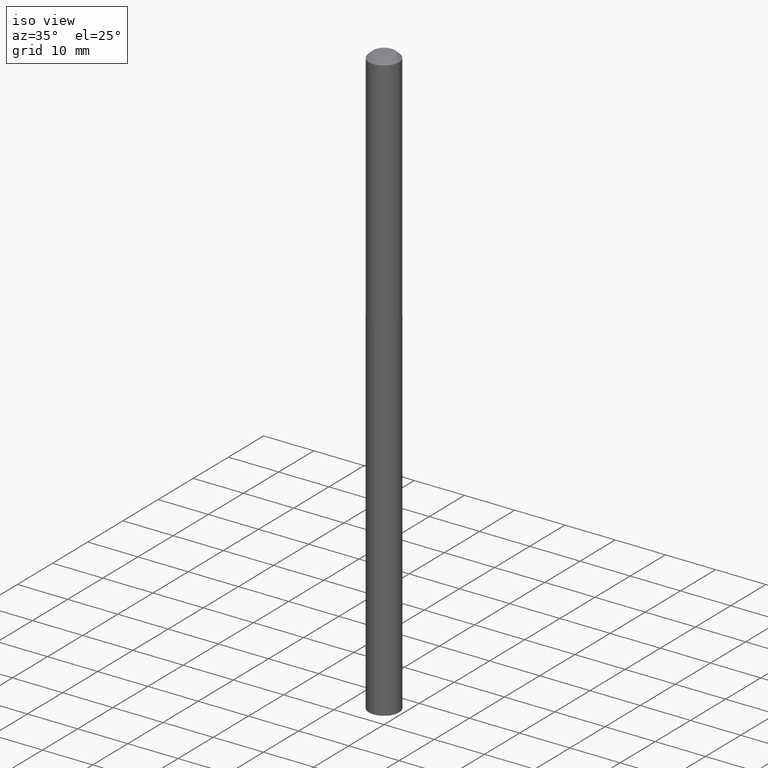
[diagram: clean part render]
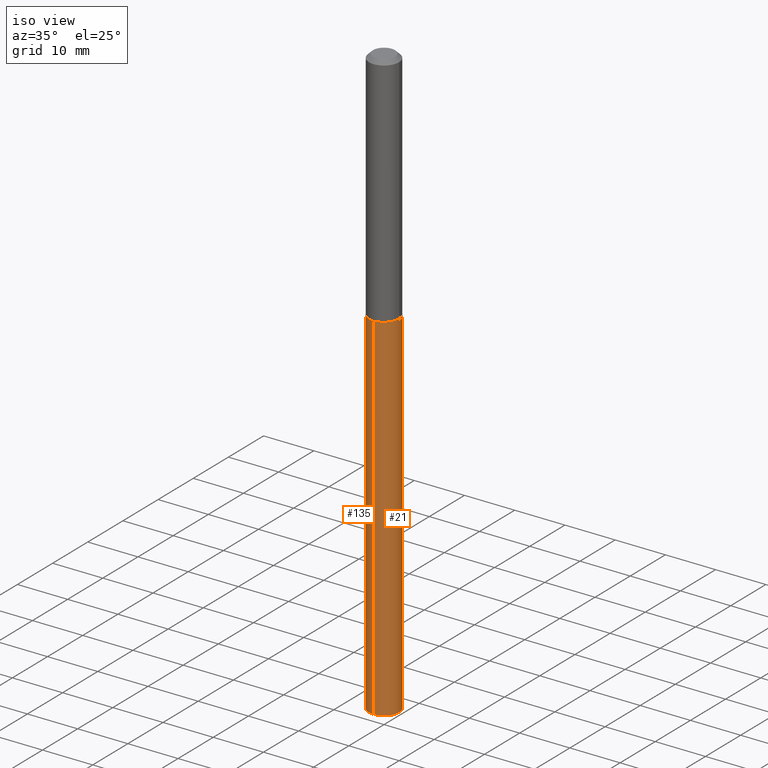
[diagram: same view with one multi-face feature highlighted, each face labeled with its STEP entity id]
A machine part, iso view. The highlighted faces form ONE feature: a constant-radius fillet chain: 2 tangent blend faces with common blend radius 2.9997 mm. The faces share edges in the B-rep.
Their STEP definitions:
[1] entity #135 (Cylinder):
#12 = CIRCLE ( 'NONE', #40, 0.1181000000000000105 ) ;
#20 = EDGE_CURVE ( 'NONE', #374, #281, #290, .T. ) ;
#22 = ORIENTED_EDGE ( 'NONE', *, *, #79, .T. ) ;
#40 = AXIS2_PLACEMENT_3D ( 'NONE', #261, #318, #55 ) ;
#44 = VERTEX_POINT ( 'NONE', #84 ) ;
#55 = DIRECTION ( 'NONE',  ( -6.982962677686265922E-15, -1.000000000000000000, 4.626330217890369336E-15 ) ) ;
#57 = DIRECTION ( 'NONE',  ( -2.442646099134245474E-29, 3.495523615998529672E-15, 1.000000000000000000 ) ) ;
#74 = VERTEX_POINT ( 'NONE', #231 ) ;
#79 = EDGE_CURVE ( 'NONE', #374, #44, #12, .T. ) ;
#84 = CARTESIAN_POINT ( 'NONE',  ( -8.246878922346346666E-16, -0.1181000000000161781, -4.638479172829875097 ) ) ;
#118 = AXIS2_PLACEMENT_3D ( 'NONE', #246, #57, #303 ) ;
#124 = DIRECTION ( 'NONE',  ( -6.982962677686265922E-15, -1.000000000000000000, 4.626330217890369336E-15 ) ) ;
#135 = ADVANCED_FACE ( 'NONE', ( #377 ), #230, .T. ) ;
#136 = CIRCLE ( 'NONE', #260, 0.1180999999999999966 ) ;
#159 = ORIENTED_EDGE ( 'NONE', *, *, #20, .F. ) ;
#209 = DIRECTION ( 'NONE',  ( -2.442646099134245474E-29, 3.495523615998529672E-15, 1.000000000000000000 ) ) ;
#212 = CARTESIAN_POINT ( 'NONE',  ( 8.391509709327920889E-16, 0.1180999999999935435, -1.850299999999999612 ) ) ;
#224 = EDGE_LOOP ( 'NONE', ( #159, #22, #251, #262 ) ) ;
#225 = CARTESIAN_POINT ( 'NONE',  ( 8.391509709327234580E-16, 0.1180999999999935435, -1.850299999999999612 ) ) ;
#230 = CYLINDRICAL_SURFACE ( 'NONE', #118, 0.1180999999999999966 ) ;
#231 = CARTESIAN_POINT ( 'NONE',  ( -8.246878922347027059E-16, -0.1181000000000064498, -1.850299999999998501 ) ) ;
#237 = EDGE_CURVE ( 'NONE', #281, #74, #136, .T. ) ;
#238 = CARTESIAN_POINT ( 'NONE',  ( 8.391509709327914972E-16, 0.1180999999999838013, -4.638479172829875985 ) ) ;
#246 = CARTESIAN_POINT ( 'NONE',  ( 4.524850932084356367E-29, -6.460287921261469331E-15, -1.850299999999999168 ) ) ;
#251 = ORIENTED_EDGE ( 'NONE', *, *, #378, .T. ) ;
#260 = AXIS2_PLACEMENT_3D ( 'NONE', #389, #209, #124 ) ;
#261 = CARTESIAN_POINT ( 'NONE',  ( 1.133538591228460176E-28, -1.620643406552354983E-14, -4.638479172829875985 ) ) ;
#262 = ORIENTED_EDGE ( 'NONE', *, *, #237, .F. ) ;
#274 = VECTOR ( 'NONE', #352, 39.37007874015748143 ) ;
#276 = CARTESIAN_POINT ( 'NONE',  ( -8.246878922347027059E-16, -0.1181000000000064498, -1.850299999999998501 ) ) ;
#281 = VERTEX_POINT ( 'NONE', #212 ) ;
#290 = LINE ( 'NONE', #225, #274 ) ;
#303 = DIRECTION ( 'NONE',  ( -6.982962677686265922E-15, -1.000000000000000000, 4.626330217890369336E-15 ) ) ;
#318 = DIRECTION ( 'NONE',  ( -2.442646099134245474E-29, 3.495523615998529672E-15, 1.000000000000000000 ) ) ;
#319 = VECTOR ( 'NONE', #360, 39.37007874015748143 ) ;
#330 = LINE ( 'NONE', #276, #319 ) ;
#352 = DIRECTION ( 'NONE',  ( -2.442646099134245474E-29, 3.495523615998529672E-15, 1.000000000000000000 ) ) ;
#360 = DIRECTION ( 'NONE',  ( -2.442646099134245474E-29, 3.495523615998529672E-15, 1.000000000000000000 ) ) ;
#374 = VERTEX_POINT ( 'NONE', #238 ) ;
#377 = FACE_OUTER_BOUND ( 'NONE', #224, .T. ) ;
#378 = EDGE_CURVE ( 'NONE', #44, #74, #330, .T. ) ;
#389 = CARTESIAN_POINT ( 'NONE',  ( 4.524850932084356367E-29, -6.460287921261469331E-15, -1.850299999999999168 ) ) ;
[2] entity #21 (Cylinder):
#14 = ORIENTED_EDGE ( 'NONE', *, *, #253, .F. ) ;
#19 = ORIENTED_EDGE ( 'NONE', *, *, #378, .F. ) ;
#20 = EDGE_CURVE ( 'NONE', #374, #281, #290, .T. ) ;
#21 = ADVANCED_FACE ( 'NONE', ( #258 ), #287, .T. ) ;
#42 = CARTESIAN_POINT ( 'NONE',  ( 1.133538591228460176E-28, -1.620643406552354983E-14, -4.638479172829875985 ) ) ;
#44 = VERTEX_POINT ( 'NONE', #84 ) ;
#65 = DIRECTION ( 'NONE',  ( -2.442646099134245474E-29, 3.495523615998529672E-15, 1.000000000000000000 ) ) ;
#68 = DIRECTION ( 'NONE',  ( -2.442646099134245474E-29, 3.495523615998529672E-15, 1.000000000000000000 ) ) ;
#74 = VERTEX_POINT ( 'NONE', #231 ) ;
#84 = CARTESIAN_POINT ( 'NONE',  ( -8.246878922346346666E-16, -0.1181000000000161781, -4.638479172829875097 ) ) ;
#95 = CARTESIAN_POINT ( 'NONE',  ( 4.524850932084356367E-29, -6.460287921261469331E-15, -1.850299999999999168 ) ) ;
#105 = EDGE_LOOP ( 'NONE', ( #278, #340, #14, #19 ) ) ;
#142 = DIRECTION ( 'NONE',  ( -2.442646099134245474E-29, 3.495523615998529672E-15, 1.000000000000000000 ) ) ;
#154 = AXIS2_PLACEMENT_3D ( 'NONE', #324, #142, #320 ) ;
#156 = DIRECTION ( 'NONE',  ( -6.982962677686265922E-15, -1.000000000000000000, 4.626330217890369336E-15 ) ) ;
#212 = CARTESIAN_POINT ( 'NONE',  ( 8.391509709327920889E-16, 0.1180999999999935435, -1.850299999999999612 ) ) ;
#225 = CARTESIAN_POINT ( 'NONE',  ( 8.391509709327234580E-16, 0.1180999999999935435, -1.850299999999999612 ) ) ;
#231 = CARTESIAN_POINT ( 'NONE',  ( -8.246878922347027059E-16, -0.1181000000000064498, -1.850299999999998501 ) ) ;
#238 = CARTESIAN_POINT ( 'NONE',  ( 8.391509709327914972E-16, 0.1180999999999838013, -4.638479172829875985 ) ) ;
#253 = EDGE_CURVE ( 'NONE', #74, #281, #345, .T. ) ;
#258 = FACE_OUTER_BOUND ( 'NONE', #105, .T. ) ;
#264 = EDGE_CURVE ( 'NONE', #44, #374, #292, .T. ) ;
#265 = AXIS2_PLACEMENT_3D ( 'NONE', #42, #68, #306 ) ;
#274 = VECTOR ( 'NONE', #352, 39.37007874015748143 ) ;
#276 = CARTESIAN_POINT ( 'NONE',  ( -8.246878922347027059E-16, -0.1181000000000064498, -1.850299999999998501 ) ) ;
#278 = ORIENTED_EDGE ( 'NONE', *, *, #264, .T. ) ;
#281 = VERTEX_POINT ( 'NONE', #212 ) ;
#287 = CYLINDRICAL_SURFACE ( 'NONE', #154, 0.1180999999999999966 ) ;
#290 = LINE ( 'NONE', #225, #274 ) ;
#292 = CIRCLE ( 'NONE', #265, 0.1181000000000000105 ) ;
#306 = DIRECTION ( 'NONE',  ( -6.982962677686265922E-15, -1.000000000000000000, 4.626330217890369336E-15 ) ) ;
#310 = AXIS2_PLACEMENT_3D ( 'NONE', #95, #65, #156 ) ;
#319 = VECTOR ( 'NONE', #360, 39.37007874015748143 ) ;
#320 = DIRECTION ( 'NONE',  ( -6.982962677686265922E-15, -1.000000000000000000, 4.626330217890369336E-15 ) ) ;
#324 = CARTESIAN_POINT ( 'NONE',  ( 4.524850932084356367E-29, -6.460287921261469331E-15, -1.850299999999999168 ) ) ;
#330 = LINE ( 'NONE', #276, #319 ) ;
#340 = ORIENTED_EDGE ( 'NONE', *, *, #20, .T. ) ;
#345 = CIRCLE ( 'NONE', #310, 0.1180999999999999966 ) ;
#352 = DIRECTION ( 'NONE',  ( -2.442646099134245474E-29, 3.495523615998529672E-15, 1.000000000000000000 ) ) ;
#360 = DIRECTION ( 'NONE',  ( -2.442646099134245474E-29, 3.495523615998529672E-15, 1.000000000000000000 ) ) ;
#374 = VERTEX_POINT ( 'NONE', #238 ) ;
#378 = EDGE_CURVE ( 'NONE', #44, #74, #330, .T. ) ;